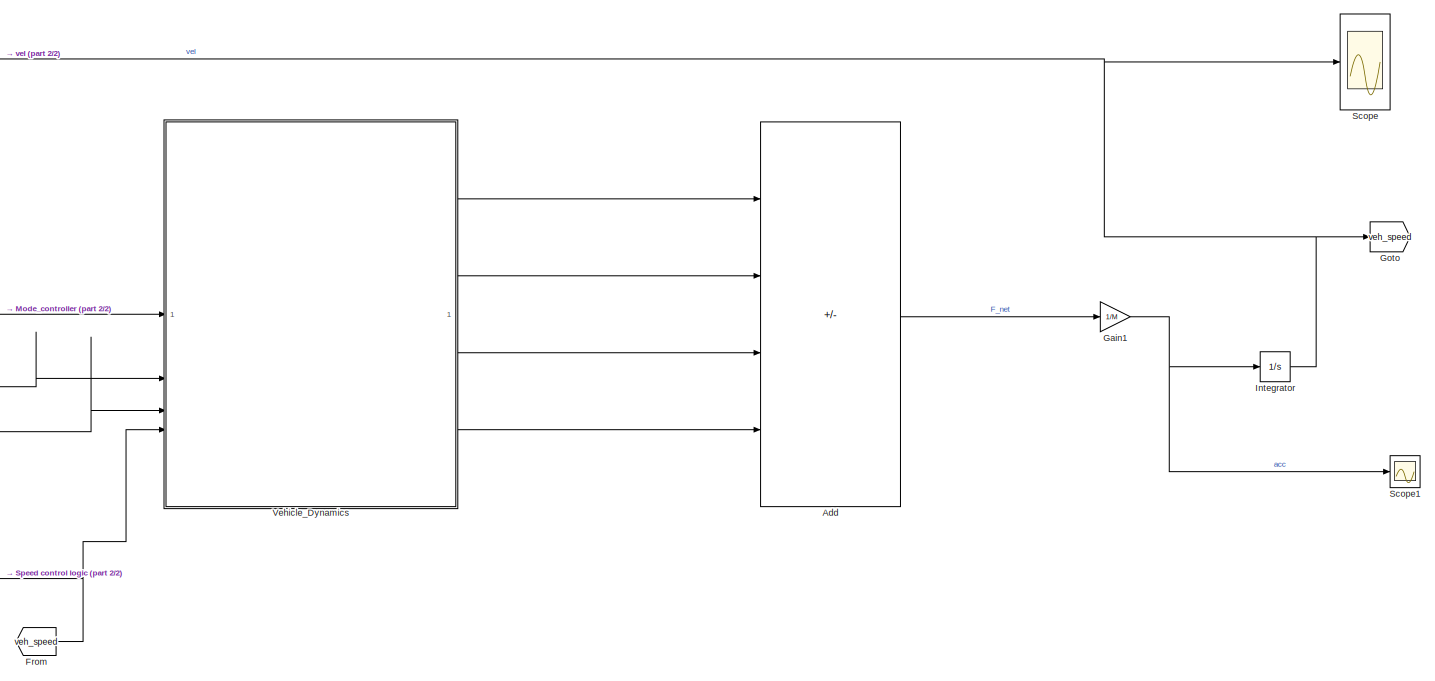
[diagram: root canvas - part 1/2, right side, full height]
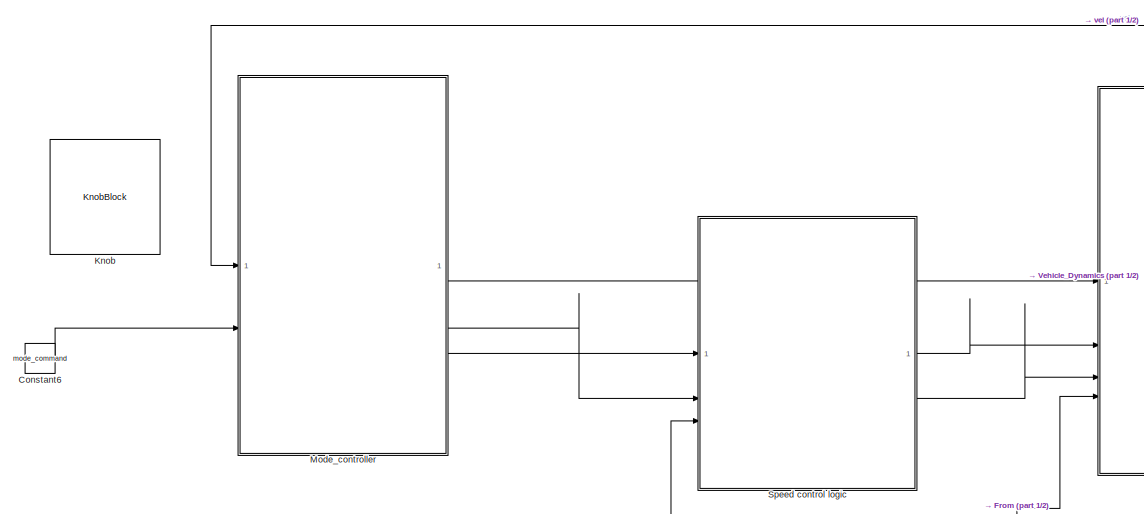
[diagram: root canvas - part 2/2, middle left region]
MODEL slx_2a050724ff2b
KIND model
CONFIG AbsTol = auto
CONFIG EnableMultiTasking = off
CONFIG FixedStep = auto
CONFIG MaxStep = auto
CONFIG MinStep = auto
CONFIG RelTol = 1e-3
CONFIG SampleTimeConstraint = Unconstrained
CONFIG SolverName = VariableStepAuto
CONFIG StartTime = 0.0
CONFIG StopTime = 100
WORKSPACE source: mxarray member
WORKSPACE Bmax = 6000
WORKSPACE Cd = 0.32
WORKSPACE Cr = 0.015
WORKSPACE M = 1200
WORKSPACE Tmax = 250
WORKSPACE mode_cm = 2
WORKSPACE mode_cmd = 3
WORKSPACE mode_command = 3
WORKSPACE p_row = 1.225
WORKSPACE radius = 0.3
BLOCK [Sum] Add
  IconShape = rectangular
  Inputs = +---
BLOCK [Constant] Constant6
  Value = mode_command
BLOCK [From] From
  GotoTag = veh_speed
BLOCK [Gain] Gain1
  Gain = 1/M
BLOCK [Goto] Goto
  GotoTag = veh_speed
BLOCK [Integrator] Integrator
BLOCK [KnobBlock] Knob
  ScaleMax = 3
  ScaleMin = 1
  TickInterval = 1.0000
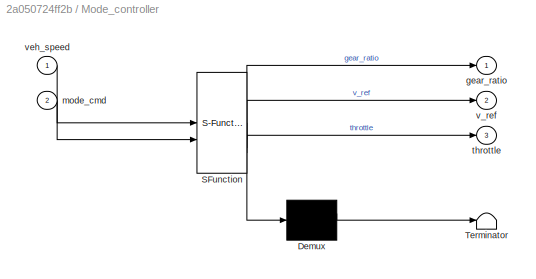
BLOCK [SubSystem] Mode_controller
  ErrorFcn = Stateflow.Translate.translate
  PermitHierarchicalResolution = ExplicitOnly
  PortSchema = {"entries":[{"content":{"sides":[{"content":{"connectorIds":["In1","In2"]},"type":"ConnectorPlacement.EquallySpacedRectSide","uuid":"0ac8a5aa-c43e-446f-a67b-bdd58b828e81"},{"content":{"connectorIds":["Out1","Out3","Out2"],"side":"RIGHT"},"type":"ConnectorPlacement.EquallySpacedRectSide","uuid":"f08d2692-71dd-4472-a357-68dab1029f9a"},{"content":{"side":"TOP"},"type":"ConnectorPlacement.EquallySpace...<+242ch>
  SFBlockType = Chart
  TreatAsAtomicUnit = on
BLOCK [Demux] Mode_controller/ Demux 
  Outputs = 1
BLOCK [S-Function] Mode_controller/ SFunction 
  EnableBusSupport = off
  FunctionName = sf_sfun
  PortCounts = [2 4]
  SFcnIsStateOwnerBlock = off
  SFunctionDeploymentMode = off
  Tag = Stateflow S-Function 3
BLOCK [Terminator] Mode_controller/ Terminator 
BLOCK [Outport] Mode_controller/gear_ratio
BLOCK [Inport] Mode_controller/mode_cmd
  Port = 2
BLOCK [Outport] Mode_controller/throttle
  Port = 3
BLOCK [Outport] Mode_controller/v_ref
  Port = 2
BLOCK [Inport] Mode_controller/veh_speed
BLOCK [Scope] Scope
  ActiveDisplayYMaximum = 285.04012820290524
  ActiveDisplayYMinimum = -89.25314706069193
  Floating = off
  GraphicalSettings = {"AxesScalingProperties":{"AlignXAxis":"Center","AlignYAxis":"Center","AutoScaleXAxisLimits":false,"AxesScaling":"Manual","AxesScalingNumUpdates":10,"ExpandOnly":true,"ScaleAxesLimitsAtStop":false,"XAxisDataRange":100,"YAxisDataRange":80},"DisplayProperties":{"ColorOrder":["auto","auto","auto","auto","auto","auto","auto","auto","auto","auto","auto","auto","auto","auto","auto","auto","auto","auto",...<+1998ch>
  MultipleDisplayCache = [{"MaxYLimMag":138.32661981338612,"MaxYLimReal":285.04012820290524,"MinYLimMag":0,"MinYLimReal":-89.25314706069193,"PlotAsMagnitudePhase":false,"ShowGrid":true,"ShowLegend":false,"Title":"%<SignalLabel>","YLabel":""}]
  NumInputPorts = 1
  ScopeFrameLocation = window
  Visible = on
  WasSavedAsWebScope = on
  WindowPosition = [360.000000,150.000000,560.000000,420.000000,]
BLOCK [Scope] Scope1
  ActiveDisplayYMaximum = 4.7649753442050633
  ActiveDisplayYMinimum = -7.9408984677471173
  DataLoggingVariableName = ScopeData1
  Floating = off
  GraphicalSettings = {"AxesScalingProperties":{"AlignXAxis":"Center","AlignYAxis":"Center","AutoScaleXAxisLimits":false,"AxesScaling":"Manual","AxesScalingNumUpdates":10,"ExpandOnly":true,"ScaleAxesLimitsAtStop":false,"XAxisDataRange":100,"YAxisDataRange":80},"DisplayProperties":{"ColorOrder":["auto","auto","auto","auto","auto","auto","auto","auto","auto","auto","auto","auto","auto","auto","auto","auto","auto","auto",...<+2038ch>
  MultipleDisplayCache = [{"MaxYLimMag":7.1085637022045942,"MaxYLimReal":4.7649753442050633,"MinYLimMag":0,"MinYLimReal":-7.9408984677471173,"PlotAsMagnitudePhase":false,"ShowGrid":true,"ShowLegend":false,"Title":"%<SignalLabel>","YLabel":""}]
  NumInputPorts = 1
  ScopeFrameLocation = window
  Visible = on
  WasSavedAsWebScope = on
  WindowPosition = [360.000000,150.000000,560.000000,420.000000,]
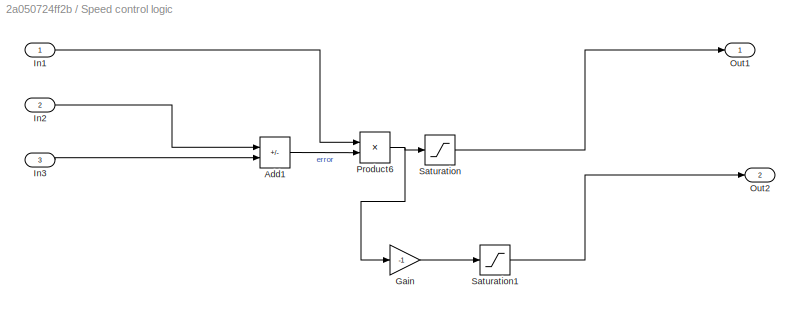
BLOCK [SubSystem] Speed control logic
BLOCK [Sum] Speed control logic/Add1
  IconShape = rectangular
  Inputs = +-
BLOCK [Gain] Speed control logic/Gain
  Gain = -1
BLOCK [Inport] Speed control logic/In1
BLOCK [Inport] Speed control logic/In2
  Port = 2
BLOCK [Inport] Speed control logic/In3
  Port = 3
BLOCK [Outport] Speed control logic/Out1
BLOCK [Outport] Speed control logic/Out2
  Port = 2
BLOCK [Product] Speed control logic/Product6
BLOCK [Saturate] Speed control logic/Saturation
  LowerLimit = 0
  UpperLimit = 1
BLOCK [Saturate] Speed control logic/Saturation1
  LowerLimit = 0
  UpperLimit = 1
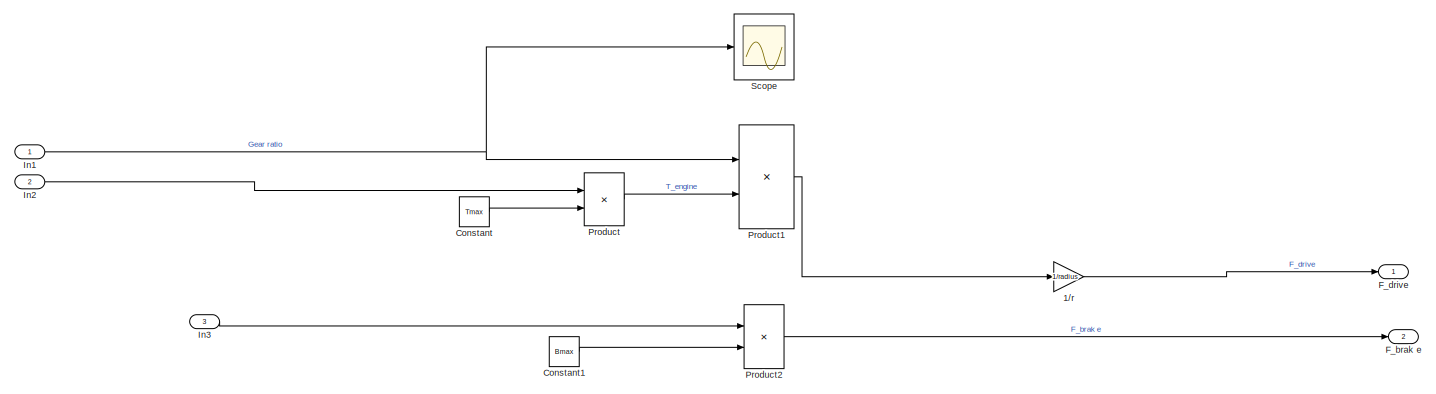
[diagram: Vehicle_Dynamics - part 1/2, full width, top band]
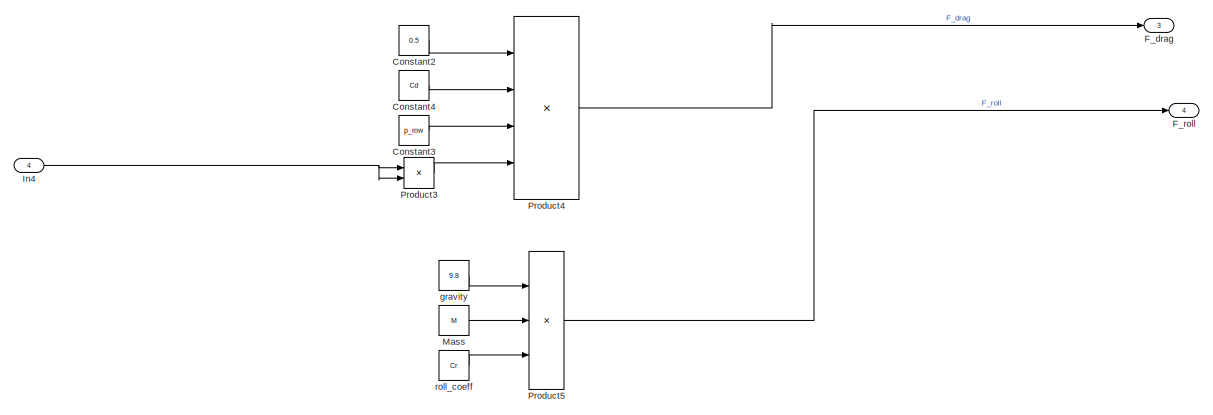
[diagram: Vehicle_Dynamics - part 2/2, full width, bottom band]
BLOCK [SubSystem] Vehicle_Dynamics
BLOCK [Gain] Vehicle_Dynamics/1//r
  Gain = 1/radius
BLOCK [Constant] Vehicle_Dynamics/Constant
  Value = Tmax
BLOCK [Constant] Vehicle_Dynamics/Constant1
  Value = Bmax
BLOCK [Constant] Vehicle_Dynamics/Constant2
  Value = 0.5
BLOCK [Constant] Vehicle_Dynamics/Constant3
  Value = p_row
BLOCK [Constant] Vehicle_Dynamics/Constant4
  Value = Cd
BLOCK [Outport] Vehicle_Dynamics/F_brak e
  Port = 2
BLOCK [Outport] Vehicle_Dynamics/F_drag
  Port = 3
BLOCK [Outport] Vehicle_Dynamics/F_drive
BLOCK [Outport] Vehicle_Dynamics/F_roll
  Port = 4
BLOCK [Inport] Vehicle_Dynamics/In1
BLOCK [Inport] Vehicle_Dynamics/In2
  Port = 2
BLOCK [Inport] Vehicle_Dynamics/In3
  Port = 3
BLOCK [Inport] Vehicle_Dynamics/In4
  Port = 4
BLOCK [Constant] Vehicle_Dynamics/Mass
  Value = M
BLOCK [Product] Vehicle_Dynamics/Product
BLOCK [Product] Vehicle_Dynamics/Product1
BLOCK [Product] Vehicle_Dynamics/Product2
BLOCK [Product] Vehicle_Dynamics/Product3
BLOCK [Product] Vehicle_Dynamics/Product4
  Inputs = 4
BLOCK [Product] Vehicle_Dynamics/Product5
  Inputs = 3
BLOCK [Scope] Vehicle_Dynamics/Scope
  ActiveDisplayYMaximum = 8.65750613679479
  ActiveDisplayYMinimum = -3.3755900316606384
  DataLoggingVariableName = ScopeData2
  Floating = off
  GraphicalSettings = {"AxesScalingProperties":{"AlignXAxis":"Center","AlignYAxis":"Center","AutoScaleXAxisLimits":false,"AxesScaling":"Manual","AxesScalingNumUpdates":10,"ExpandOnly":true,"ScaleAxesLimitsAtStop":false,"XAxisDataRange":100,"YAxisDataRange":80},"DisplayProperties":{"ColorOrder":["auto","auto","auto","auto","auto","auto","auto","auto","auto","auto","auto","auto","auto","auto","auto","auto","auto","auto",...<+2010ch>
  MultipleDisplayCache = [{"MaxYLimMag":4.7250000000000005,"MaxYLimReal":8.65750613679479,"MinYLimMag":0,"MinYLimReal":-3.3755900316606384,"PlotAsMagnitudePhase":false,"ShowGrid":true,"ShowLegend":false,"Title":"%<SignalLabel>","YLabel":""}]
  NumInputPorts = 1
  ScopeFrameLocation = window
  WasSavedAsWebScope = on
  WindowPosition = [360.000000,150.000000,560.000000,420.000000,]
BLOCK [Constant] Vehicle_Dynamics/gravity
  Value = 9.8
BLOCK [Constant] Vehicle_Dynamics/roll_coeff
  Value = Cr
LINE Add:1 -> Gain1:1
LINE Constant6:1 -> Mode_controller:2
NET From:1 -> Speed control logic:3, Vehicle_Dynamics:4
NET Gain1:1 -> Integrator:1, Scope1:1
NET Integrator:1 -> Goto:1, Mode_controller:1, Scope:1
LINE Mode_controller:1 -> Vehicle_Dynamics:1
LINE Mode_controller:2 -> Speed control logic:2
LINE Mode_controller:3 -> Speed control logic:1
LINE Speed control logic/Add1:1 -> Speed control logic/Product6:2
LINE Speed control logic/Gain:1 -> Speed control logic/Saturation1:1
LINE Speed control logic/In1:1 -> Speed control logic/Product6:1
LINE Speed control logic/In2:1 -> Speed control logic/Add1:1
LINE Speed control logic/In3:1 -> Speed control logic/Add1:2
NET Speed control logic/Product6:1 -> Speed control logic/Gain:1, Speed control logic/Saturation:1
LINE Speed control logic/Saturation1:1 -> Speed control logic/Out2:1
LINE Speed control logic/Saturation:1 -> Speed control logic/Out1:1
LINE Speed control logic:1 -> Vehicle_Dynamics:2
LINE Speed control logic:2 -> Vehicle_Dynamics:3
LINE Vehicle_Dynamics/1//r:1 -> Vehicle_Dynamics/F_drive:1
LINE Vehicle_Dynamics/Constant1:1 -> Vehicle_Dynamics/Product2:2
LINE Vehicle_Dynamics/Constant2:1 -> Vehicle_Dynamics/Product4:1
LINE Vehicle_Dynamics/Constant3:1 -> Vehicle_Dynamics/Product4:3
LINE Vehicle_Dynamics/Constant4:1 -> Vehicle_Dynamics/Product4:2
LINE Vehicle_Dynamics/Constant:1 -> Vehicle_Dynamics/Product:2
NET Vehicle_Dynamics/In1:1 -> Vehicle_Dynamics/Product1:1, Vehicle_Dynamics/Scope:1
LINE Vehicle_Dynamics/In2:1 -> Vehicle_Dynamics/Product:1
LINE Vehicle_Dynamics/In3:1 -> Vehicle_Dynamics/Product2:1
NET Vehicle_Dynamics/In4:1 -> Vehicle_Dynamics/Product3:1, Vehicle_Dynamics/Product3:2
LINE Vehicle_Dynamics/Mass:1 -> Vehicle_Dynamics/Product5:2
LINE Vehicle_Dynamics/Product1:1 -> Vehicle_Dynamics/1//r:1
LINE Vehicle_Dynamics/Product2:1 -> Vehicle_Dynamics/F_brak e:1
LINE Vehicle_Dynamics/Product3:1 -> Vehicle_Dynamics/Product4:4
LINE Vehicle_Dynamics/Product4:1 -> Vehicle_Dynamics/F_drag:1
LINE Vehicle_Dynamics/Product5:1 -> Vehicle_Dynamics/F_roll:1
LINE Vehicle_Dynamics/Product:1 -> Vehicle_Dynamics/Product1:2
LINE Vehicle_Dynamics/gravity:1 -> Vehicle_Dynamics/Product5:1
LINE Vehicle_Dynamics/roll_coeff:1 -> Vehicle_Dynamics/Product5:3
LINE Vehicle_Dynamics:1 -> Add:1
LINE Vehicle_Dynamics:2 -> Add:2
LINE Vehicle_Dynamics:3 -> Add:3
LINE Vehicle_Dynamics:4 -> Add:4
note: NET lines group one-source signal fan-out (src -> all destinations, sorted); 1:1 wires keep LINE
CHART Mode_controller states=3 transitions=7
  STATE_LABEL 'Eco_mode\nen: v_ref = 60\n throttle = 0.4\nduring:\n if  veh_speed < 40\n     gear_ratio = 4.2;\n elseif veh_speed > 60\n     gear_ratio = 2.6;\n else\n     gear_ratio = 1.6;\n end\n'
  STATE_LABEL 'Normal_mode\nen: v_ref = 90\n throttle = 0.7\nduring: if veh_speed < 40\n     gear_ratio = 4.2;\n elseif veh_speed >90\n     gear_ratio = 2.6;\n else\n     gear_ratio = 1.6;\n end\n'
  STATE_LABEL 'Sport_mode\nen: v_ref = 120;\n throttle = 1.0;\nduring: if veh_speed < 50\n     gear_ratio = 5.0;\n elseif veh_speed < 100\n     gear_ratio = 3.2;\n else\n     gear_ratio = 2.0;\n end\n'
CHART  states=0 transitions=0
